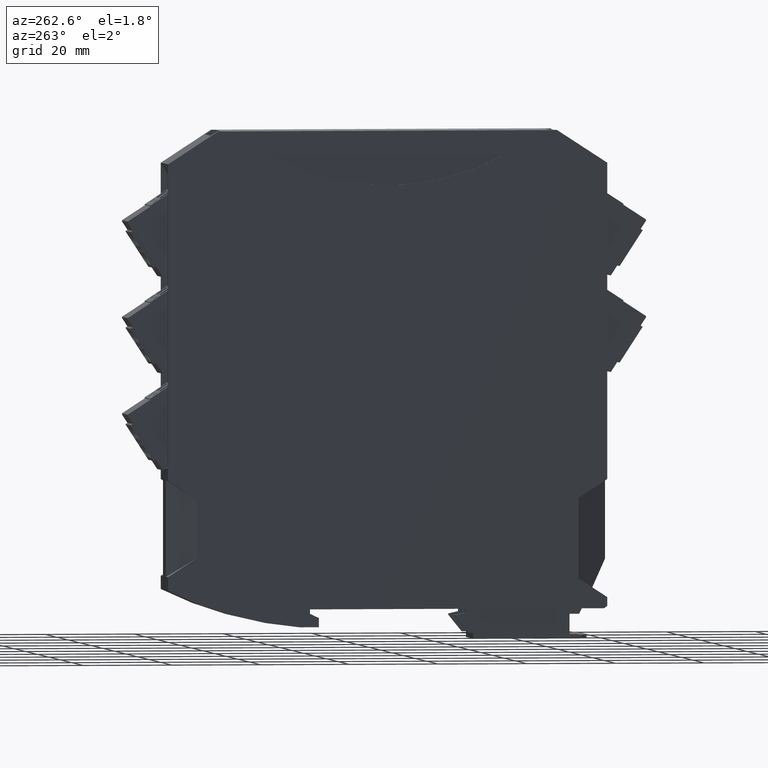
[diagram: clean part render]
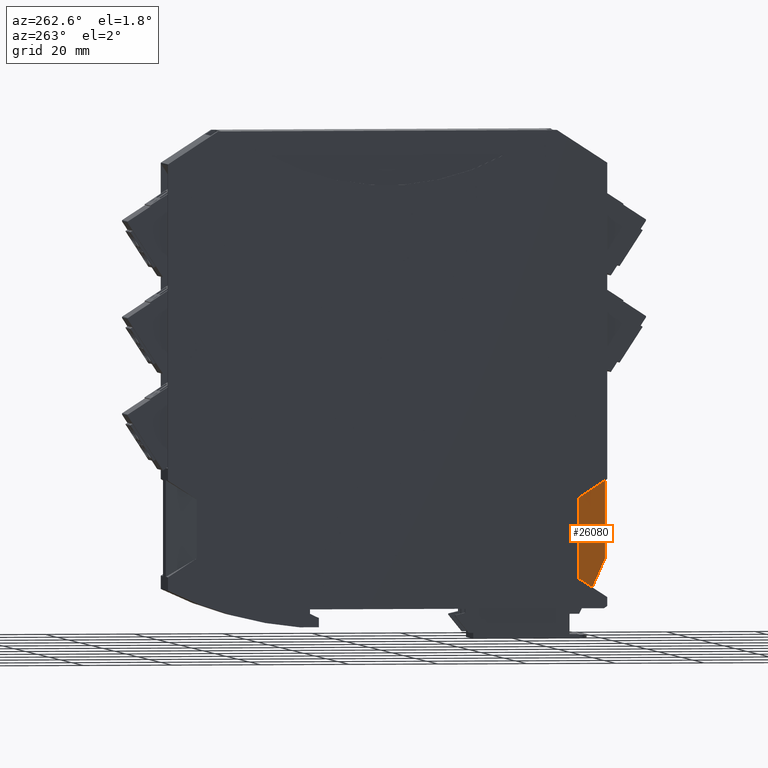
[diagram: same view with one face highlighted and labeled with its STEP entity id]
A machine part, auxiliary view. The second image highlights one B-rep face of the part: STEP entity #26080.
In plain terms, the highlighted planar face has unit normal (-0.866, -0.5, 0).
Its self-contained STEP definition (entity closure, byte-faithful):
#15100=CARTESIAN_POINT('',(3.75277674922265,-4.73505679110531E-11,
17.7000000006574));
#15110=VERTEX_POINT('',#15100);
#15140=CARTESIAN_POINT('',(3.75277674929164,-1.66849645211187E-10,
-45.6999999999939));
#15150=DIRECTION('',(-1.08820890664562E-12,1.88483935512212E-12,1.));
#15160=VECTOR('',#15150,1.);
#15170=LINE('',#15140,#15160);
#15180=CARTESIAN_POINT('',(3.75277674920317,-1.36068933898059E-11,
35.6000000000155));
#15190=VERTEX_POINT('',#15180);
#15200=EDGE_CURVE('',#15110,#15190,#15170,.T.);
#19520=CARTESIAN_POINT('',(1.93507661335168,3.14834898820601,
11.2445617390166));
#19530=VERTEX_POINT('',#19520);
#19560=CARTESIAN_POINT('',(-14.0991775170261,30.9204918034914,
-45.6999999999939));
#19570=DIRECTION('',(-0.245346744240245,0.424953026495712,
-0.871332256009638));
#19580=VECTOR('',#19570,1.);
#19590=LINE('',#19560,#19580);
#19600=EDGE_CURVE('',#15110,#19530,#19590,.T.);
#25770=CARTESIAN_POINT('',(0.736199124445683,5.2248657110418,
46.9007795928476));
#25780=DIRECTION('',(-0.866025403784439,-0.5,3.11978145888651E-18));
#25790=DIRECTION('',(2.28383853641285E-18,2.28383853642223E-18,1.));
#25800=AXIS2_PLACEMENT_3D('',#25770,#25780,#25790);
#25810=PLANE('',#25800);
#25820=CARTESIAN_POINT('',(-24.8260615758699,49.5000000003095,
41.3456758635122));
#25830=DIRECTION('',(-0.435805742593935,0.754837688402981,
0.490197326480462));
#25840=VECTOR('',#25830,1.);
#25850=LINE('',#25820,#25840);
#25860=CARTESIAN_POINT('',(2.31015206964003E-11,6.49999999902943,
13.4211493553931));
#25870=VERTEX_POINT('',#25860);
#25880=EDGE_CURVE('',#19530,#25870,#25850,.T.);
#25890=ORIENTED_EDGE('',*,*,#25880,.F.);
#25900=CARTESIAN_POINT('',(-7.17125914206918E-10,6.50000000031154,
-45.6999999999939));
#25910=DIRECTION('',(-2.28383853641699E-18,-2.28383853641506E-18,-1.));
#25920=VECTOR('',#25910,1.);
#25930=LINE('',#25900,#25920);
#25940=CARTESIAN_POINT('',(-1.54766865989586E-10,6.49999999933751,
31.3788506446465));
#25950=VERTEX_POINT('',#25940);
#25960=EDGE_CURVE('',#25950,#25870,#25930,.T.);
#25970=ORIENTED_EDGE('',*,*,#25960,.T.);
#25980=CARTESIAN_POINT('',(-24.8260615758699,49.5000000003096,
3.45432413647909));
#25990=DIRECTION('',(-0.435805742593754,0.754837688402667,
-0.490197326481107));
#26000=VECTOR('',#25990,1.);
#26010=LINE('',#25980,#26000);
#26020=EDGE_CURVE('',#15190,#25950,#26010,.T.);
#26030=ORIENTED_EDGE('',*,*,#26020,.T.);
#26040=ORIENTED_EDGE('',*,*,#15200,.T.);
#26050=ORIENTED_EDGE('',*,*,#19600,.F.);
#26060=EDGE_LOOP('',(#26050,#26040,#26030,#25970,#25890));
#26070=FACE_OUTER_BOUND('',#26060,.T.);
#26080=ADVANCED_FACE('',(#26070),#25810,.T.);